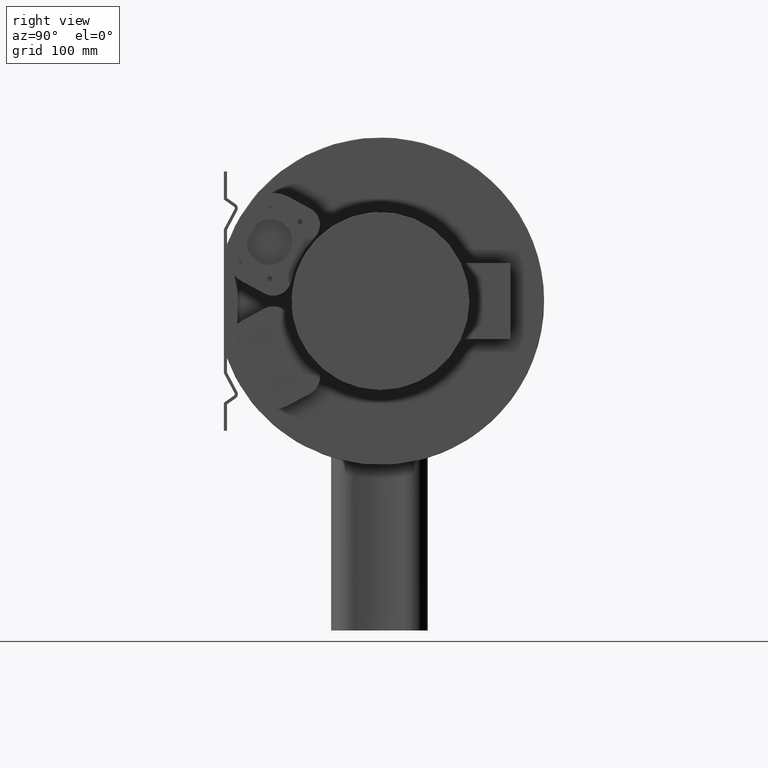
[diagram: clean part render]
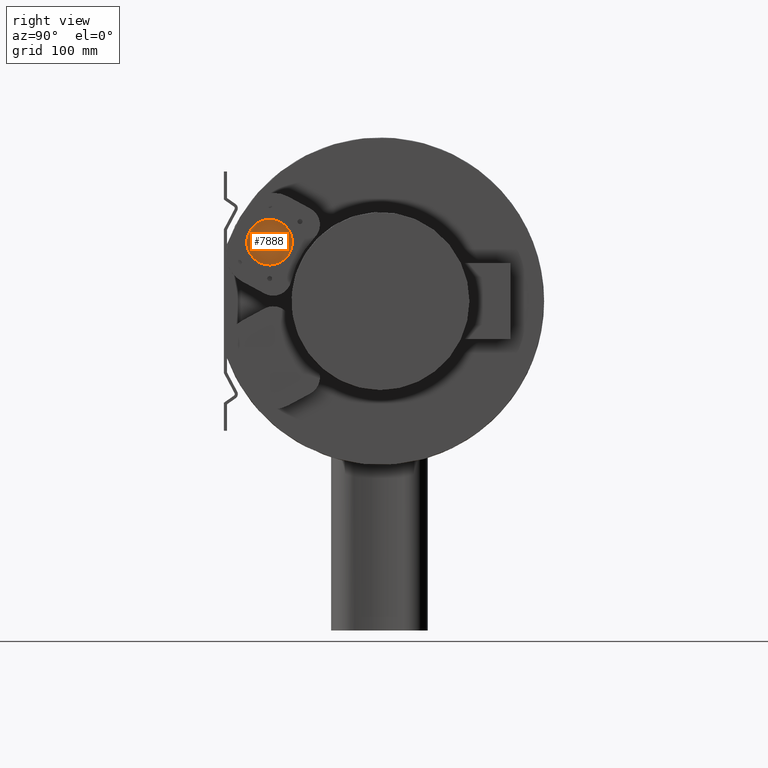
[diagram: same view with one face highlighted and labeled with its STEP entity id]
A machine part, right view. The second image highlights one B-rep face of the part: STEP entity #7888.
In plain terms, the highlighted planar face has unit normal (1, 0, 0).
Its self-contained STEP definition (entity closure, byte-faithful):
#7868=CARTESIAN_POINT('',(304.00000000000006,-109.00000000000003,35.577500000000008));
#7869=VERTEX_POINT('',#7868);
#7870=CARTESIAN_POINT('',(304.00000000000006,-109.00000000000003,58.000000000000007));
#7871=DIRECTION('',(1.0,0.0,0.0));
#7872=DIRECTION('',(0.0,0.0,-1.0));
#7873=AXIS2_PLACEMENT_3D('',#7870,#7871,#7872);
#7874=CIRCLE('',#7873,22.422499999999999);
#7875=EDGE_CURVE('',#7869,#7869,#7874,.T.);
#7880=CARTESIAN_POINT('',(304.00000000000006,-109.00000000000003,58.000000000000007));
#7881=DIRECTION('',(1.0,0.0,0.0));
#7882=DIRECTION('',(0.0,0.0,-1.0));
#7883=AXIS2_PLACEMENT_3D('',#7880,#7881,#7882);
#7884=PLANE('',#7883);
#7885=ORIENTED_EDGE('',*,*,#7875,.T.);
#7886=EDGE_LOOP('',(#7885));
#7887=FACE_OUTER_BOUND('',#7886,.T.);
#7888=ADVANCED_FACE('',(#7887),#7884,.T.);